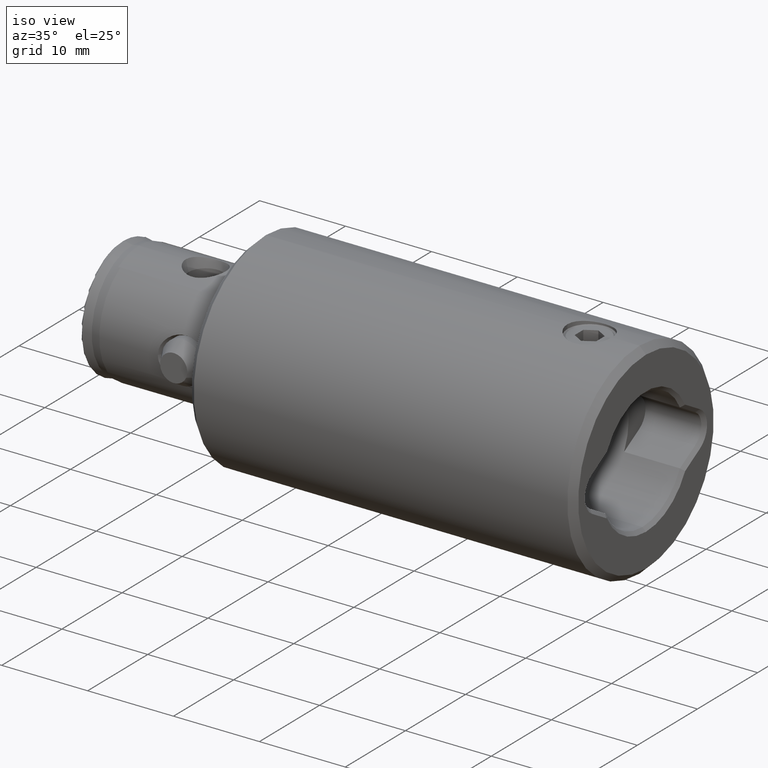
[diagram: clean part render]
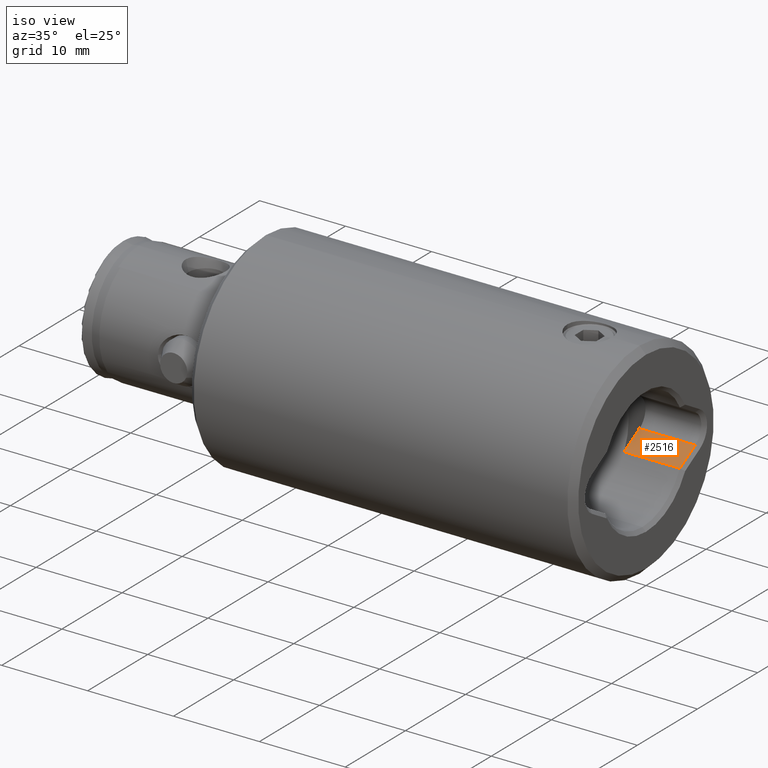
[diagram: same view with one face highlighted and labeled with its STEP entity id]
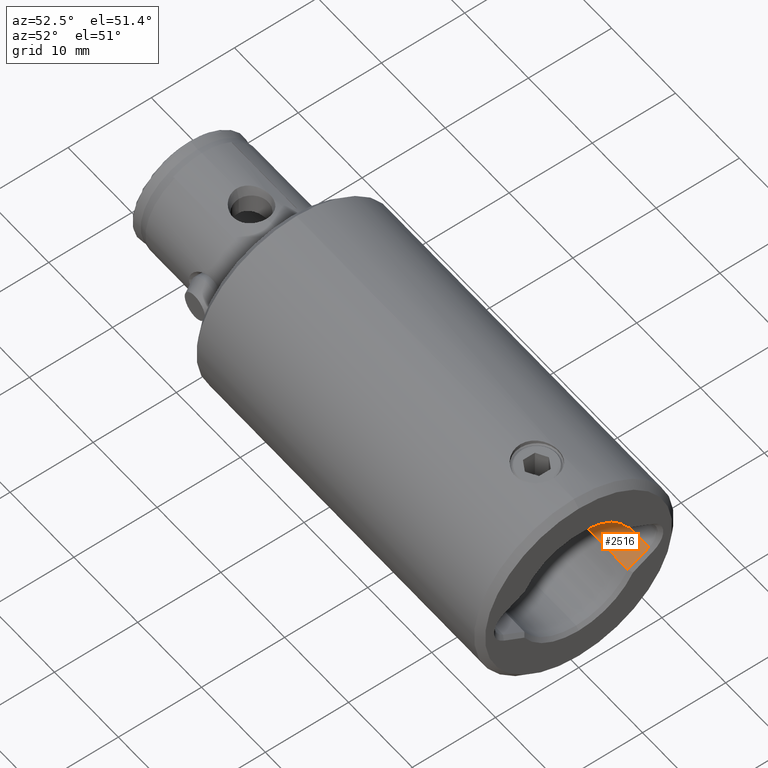
[diagram: same view with one face highlighted and labeled with its STEP entity id]
A machine part, iso view. The second image highlights one B-rep face of the part: STEP entity #2516.
A second angle (auxiliary view) of the same face is appended — the face is thin or edge-on in the first view.
In plain terms, the highlighted planar face has unit normal (0, 0.5, -0.866).
Its self-contained STEP definition (entity closure, byte-faithful):
#82 = VECTOR ( 'NONE', #4136, 1000.000000000000000 ) ;
#103 = LINE ( 'NONE', #397, #3461 ) ;
#116 = DIRECTION ( 'NONE',  ( 0.0000000000000000000, 0.0000000000000000000, 1.000000000000000000 ) ) ;
#191 = CARTESIAN_POINT ( 'NONE',  ( -1.732050807568876300, 8.775000000000003900, 6.900000000000000400 ) ) ;
#207 = VERTEX_POINT ( 'NONE', #2408 ) ;
#267 = LINE ( 'NONE', #1858, #82 ) ;
#304 = EDGE_CURVE ( 'NONE', #2740, #841, #797, .T. ) ;
#343 = CARTESIAN_POINT ( 'NONE',  ( -3.205490311578184800, 6.222927917176799700, 6.899999999999999500 ) ) ;
#397 = CARTESIAN_POINT ( 'NONE',  ( -1.732050807568876300, 8.775000000000003900, 6.900000000000000400 ) ) ;
#446 = CARTESIAN_POINT ( 'NONE',  ( -3.205490311578183900, 6.222927917176801500, 17.50000000000000000 ) ) ;
#739 = DIRECTION ( 'NONE',  ( 0.5000000000000011100, 0.8660254037844380400, -0.0000000000000000000 ) ) ;
#797 = LINE ( 'NONE', #3422, #2337 ) ;
#841 = VERTEX_POINT ( 'NONE', #2928 ) ;
#903 = LINE ( 'NONE', #446, #3083 ) ;
#1175 = DIRECTION ( 'NONE',  ( -0.5000000000000011100, -0.8660254037844380400, 0.0000000000000000000 ) ) ;
#1641 = VERTEX_POINT ( 'NONE', #343 ) ;
#1839 = ORIENTED_EDGE ( 'NONE', *, *, #304, .T. ) ;
#1858 = CARTESIAN_POINT ( 'NONE',  ( -1.732050807568876300, 8.775000000000003900, 6.900000000000000400 ) ) ;
#2070 = ORIENTED_EDGE ( 'NONE', *, *, #2272, .F. ) ;
#2272 = EDGE_CURVE ( 'NONE', #1641, #207, #103, .T. ) ;
#2337 = VECTOR ( 'NONE', #2451, 999.9999999999998900 ) ;
#2403 = ORIENTED_EDGE ( 'NONE', *, *, #2453, .F. ) ;
#2408 = CARTESIAN_POINT ( 'NONE',  ( -1.732050807568876300, 8.775000000000003900, 6.900000000000000400 ) ) ;
#2451 = DIRECTION ( 'NONE',  ( 0.5000000000000012200, 0.8660254037844380400, 0.0000000000000000000 ) ) ;
#2453 = EDGE_CURVE ( 'NONE', #2740, #1641, #903, .T. ) ;
#2494 = FACE_OUTER_BOUND ( 'NONE', #3984, .T. ) ;
#2516 = ADVANCED_FACE ( 'NONE', ( #2494 ), #3113, .F. ) ;
#2740 = VERTEX_POINT ( 'NONE', #3617 ) ;
#2928 = CARTESIAN_POINT ( 'NONE',  ( -1.732050807568876300, 8.775000000000003900, 0.4000000000000019100 ) ) ;
#3083 = VECTOR ( 'NONE', #116, 1000.000000000000000 ) ;
#3113 = PLANE ( 'NONE',  #3137 ) ;
#3123 = DIRECTION ( 'NONE',  ( -0.8660254037844380400, 0.5000000000000011100, 0.0000000000000000000 ) ) ;
#3137 = AXIS2_PLACEMENT_3D ( 'NONE', #191, #3123, #1175 ) ;
#3422 = CARTESIAN_POINT ( 'NONE',  ( -1.732050807568876300, 8.775000000000003900, 0.4000000000000001900 ) ) ;
#3461 = VECTOR ( 'NONE', #739, 1000.000000000000100 ) ;
#3503 = ORIENTED_EDGE ( 'NONE', *, *, #3601, .F. ) ;
#3601 = EDGE_CURVE ( 'NONE', #207, #841, #267, .T. ) ;
#3617 = CARTESIAN_POINT ( 'NONE',  ( -3.205490311578183900, 6.222927917176801500, 0.3999999999999975800 ) ) ;
#3984 = EDGE_LOOP ( 'NONE', ( #2403, #1839, #3503, #2070 ) ) ;
#4136 = DIRECTION ( 'NONE',  ( -0.0000000000000000000, -0.0000000000000000000, -1.000000000000000000 ) ) ;